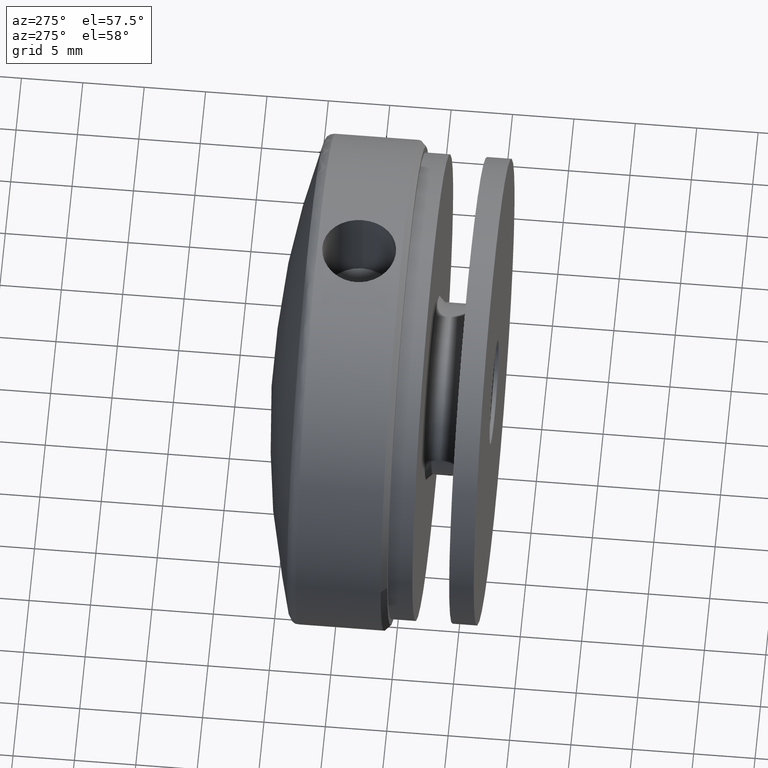
[diagram: clean part render]
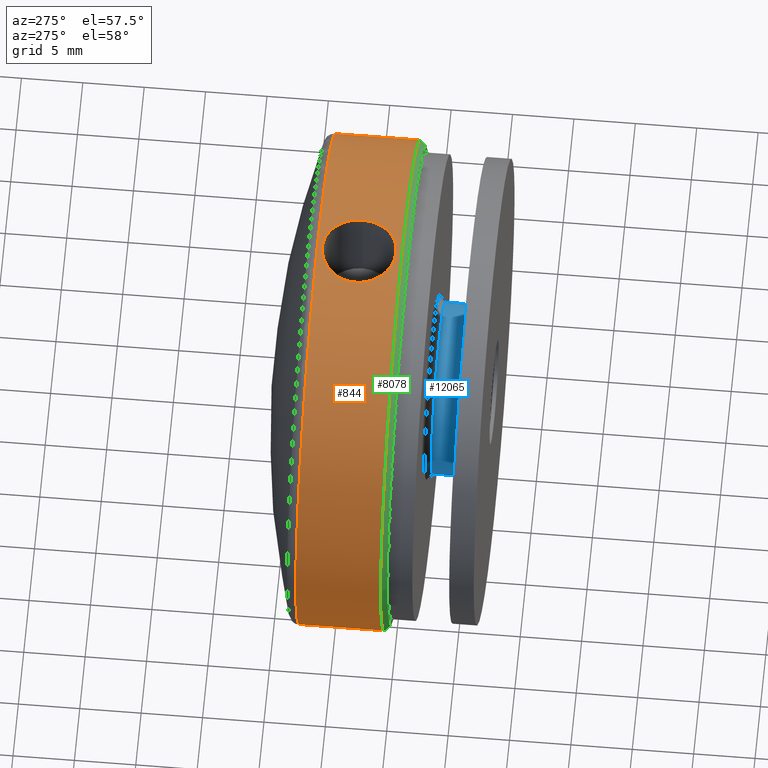
[diagram: same view with three faces highlighted in distinct colors, each labeled with its STEP entity id]
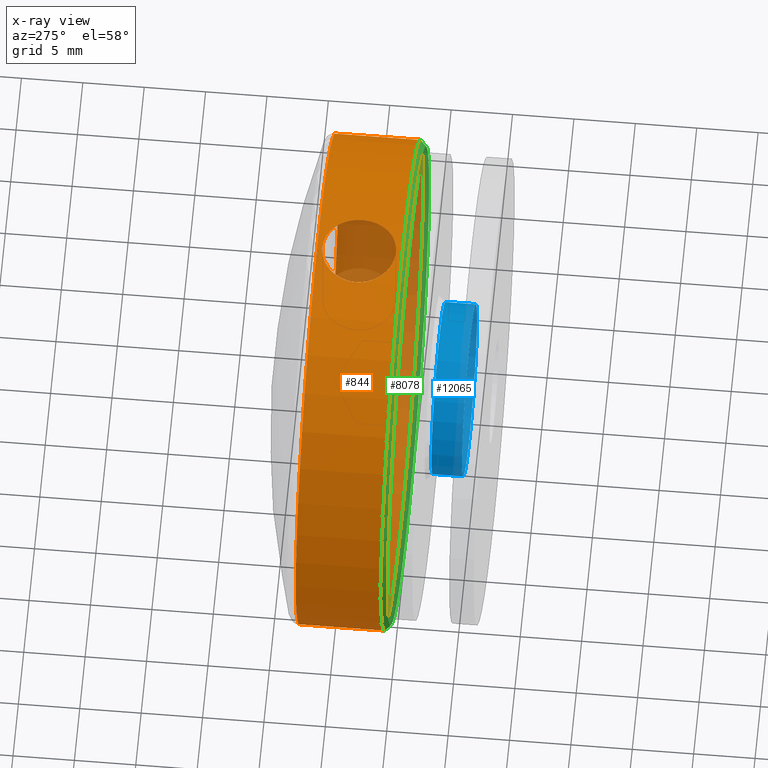
[diagram: x-ray of the same camera — body ghosted, the three highlighted faces saturated]
A machine part, auxiliary view with three faces highlighted in distinct colors.
The next image is the same camera in x-ray (body ghosted, the three faces saturated) — at least one of them is partly hidden behind the body in this view.
Their STEP definitions:

[orange] entity #844 — the highlighted cylindrical surface (bore or boss wall) has radius 20 mm, axis along (0, -1, 0).
#61 = CARTESIAN_POINT ( 'NONE',  ( 0.3924843016013099817, 1.014235132259550642, 19.99708734834322144 ) ) ;
#118 = CARTESIAN_POINT ( 'NONE',  ( 1.982912023966429516, 1.735301850126051093, 19.90194385507969699 ) ) ;
#167 = CARTESIAN_POINT ( 'NONE',  ( -0.7799630153351120310, 6.898430663692165510, 19.98570666959620468 ) ) ;
#211 = CARTESIAN_POINT ( 'NONE',  ( -0.9654443059216524237, 1.147787280579952940, 19.97751409969940184 ) ) ;
#428 = ORIENTED_EDGE ( 'NONE', *, *, #5107, .T. ) ;
#786 = VERTEX_POINT ( 'NONE', #9038 ) ;
#844 = ADVANCED_FACE ( 'NONE', ( #11697, #5355, #10942 ), #10561, .T. ) ;
#1266 = CARTESIAN_POINT ( 'NONE',  ( -2.695737535104842042, 2.663983177191850515, 19.81763806455638388 ) ) ;
#1306 = CARTESIAN_POINT ( 'NONE',  ( -2.904244946109209025, 4.772452195124953001, 19.78804872610956878 ) ) ;
#1346 = CARTESIAN_POINT ( 'NONE',  ( 2.694944518628679564, 5.327454306437994447, 19.81774487506234195 ) ) ;
#1361 = CARTESIAN_POINT ( 'NONE',  ( -2.385346488580511792, 5.824998558950380101, 19.85754949948117343 ) ) ;
#1764 = EDGE_LOOP ( 'NONE', ( #3885 ) ) ;
#1806 = CARTESIAN_POINT ( 'NONE',  ( -4.731064025391258908E-16, 0.4999999999999970024, 0.000000000000000000 ) ) ;
#2163 = DIRECTION ( 'NONE',  ( 9.462128050782586841E-16, -1.000000000000000000, -0.000000000000000000 ) ) ;
#2369 = CARTESIAN_POINT ( 'NONE',  ( 2.602028829569765556, 5.501130428467649658, 19.83032320855960151 ) ) ;
#2432 = CARTESIAN_POINT ( 'NONE',  ( 2.980494632510934050, 3.601384464667871210, 19.77670706137169176 ) ) ;
#2472 = CARTESIAN_POINT ( 'NONE',  ( 2.902947195030745497, 4.777284174358786828, 19.78823979352067397 ) ) ;
#2489 = CARTESIAN_POINT ( 'NONE',  ( -2.999924367750780529, 3.797927883773791979, 19.77373140794605888 ) ) ;
#2547 = CARTESIAN_POINT ( 'NONE',  ( -1.333671717301641468, 6.689445687771605975, 19.95631324620890013 ) ) ;
#2585 = CARTESIAN_POINT ( 'NONE',  ( 0.7748024653411119678, 6.899821084409989425, 19.98590931602771548 ) ) ;
#2599 = CARTESIAN_POINT ( 'NONE',  ( -0.1942566587511935505, 0.9948895982359836632, 20.00001656026199726 ) ) ;
#2954 = AXIS2_PLACEMENT_3D ( 'NONE', #11301, #3109, #11461 ) ;
#3037 = DIRECTION ( 'NONE',  ( -9.462128050782584868E-16, 1.000000000000000000, 0.000000000000000000 ) ) ;
#3109 = DIRECTION ( 'NONE',  ( 9.462128050782584868E-16, -1.000000000000000000, -0.000000000000000000 ) ) ;
#3441 = CARTESIAN_POINT ( 'NONE',  ( 2.904122174186587024, 3.217596731754320150, 19.78806622293177142 ) ) ;
#3538 = CARTESIAN_POINT ( 'NONE',  ( 1.827406881401280048, 6.382266513394358576, 19.91701262681981888 ) ) ;
#3596 = CIRCLE ( 'NONE', #14019, 19.99999999999999289 ) ;
#3702 = CARTESIAN_POINT ( 'NONE',  ( 0.3908299546655042422, 6.975865032044837655, 19.99710334011700041 ) ) ;
#3716 = CARTESIAN_POINT ( 'NONE',  ( -2.604078776341593571, 5.497513335365488807, 19.83005102670025366 ) ) ;
#3752 = CARTESIAN_POINT ( 'NONE',  ( 0.9657274049644209990, 6.842097939216756686, 19.97749811756153449 ) ) ;
#3766 = CARTESIAN_POINT ( 'NONE',  ( -2.980208671656110031, 3.598908363933514654, 19.77675080022011755 ) ) ;
#3819 = CARTESIAN_POINT ( 'NONE',  ( -1.504275438480748406, 1.392061028481429652, 19.94401427874444366 ) ) ;
#3885 = ORIENTED_EDGE ( 'NONE', *, *, #12860, .T. ) ;
#4028 = AXIS2_PLACEMENT_3D ( 'NONE', #1806, #3037, #8835 ) ;
#4345 = CARTESIAN_POINT ( 'NONE',  ( 19.99999999999998579, 7.405988364528855783, 0.000000000000000000 ) ) ;
#4401 = VERTEX_POINT ( 'NONE', #4345 ) ;
#4431 = CIRCLE ( 'NONE', #4028, 19.99999999999999289 ) ;
#4601 = DIRECTION ( 'NONE',  ( 1.000000000000000000, 9.540979117872442964E-16, 0.000000000000000000 ) ) ;
#4893 = CARTESIAN_POINT ( 'NONE',  ( 2.844982231046246035, 4.966718345130437307, 19.79676271506473029 ) ) ;
#4908 = CARTESIAN_POINT ( 'NONE',  ( -1.980792087563049586, 1.733243495970534287, 19.90216665992418044 ) ) ;
#4968 = CARTESIAN_POINT ( 'NONE',  ( -0.9703054951543786943, 6.840562345118187615, 19.97727773938221674 ) ) ;
#5023 = CARTESIAN_POINT ( 'NONE',  ( -2.903185432767895868, 3.213945165983599139, 19.78820432185765199 ) ) ;
#5107 = EDGE_CURVE ( 'NONE', #4401, #4401, #3596, .T. ) ;
#5355 = FACE_OUTER_BOUND ( 'NONE', #8004, .T. ) ;
#5861 = CARTESIAN_POINT ( 'NONE',  ( 2.695634571067647922, 2.663759504817300616, 19.81765225613441217 ) ) ;
#6132 = CARTESIAN_POINT ( 'NONE',  ( -2.384381064545721518, 2.163917290254678161, 19.85766134232187596 ) ) ;
#6183 = CARTESIAN_POINT ( 'NONE',  ( -1.831084454568188358, 6.379415806760994734, 19.91667079449273814 ) ) ;
#6228 = CARTESIAN_POINT ( 'NONE',  ( 0.9692005117596771413, 1.149159496943954473, 19.97731995618197587 ) ) ;
#6583 = B_SPLINE_CURVE_WITH_KNOTS ( 'NONE', 3,
 ( #7204, #9604, #2432, #3441, #12994, #5861, #14190, #14559, #12056, #118, #10856, #8454, #10959, #6228, #13258, #61, #12111, #2599, #7427, #8510, #211, #8613, #3819, #14509, #4908, #13302, #6132, #10902, #1266, #12154, #5023, #3766, #2489, #9667, #13356, #1306, #9765, #9718, #3716, #1361, #14444, #7366, #6183, #7316, #2547, #4968, #167, #8568, #14274, #9751, #3702, #2585, #3752, #14383, #9544, #3538, #14334, #15544, #12038, #2369, #1346, #4893, #2472, #11941, #8395, #8442 ),
 .UNSPECIFIED., .T., .F.,
 ( 4, 2, 2, 2, 2, 2, 2, 2, 2, 2, 2, 2, 2, 2, 2, 2, 2, 2, 2, 2, 2, 2, 2, 2, 2, 2, 2, 2, 2, 2, 2, 2, 4 ),
 ( 0.000000000000000000, 0.0005869663246212966038, 0.001173932649242593208, 0.001760898973863890028, 0.002347865298485186415, 0.002934831623106483236, 0.003521797947727780057, 0.004108764272349076443, 0.004695730596970372830, 0.005282696921591670085, 0.005869663246212966472, 0.006456629570834262859, 0.007043595895455560113, 0.007630562220076856500, 0.008217528544698152887, 0.008804494869319449274, 0.009391461193940745661, 0.009978427518562043783, 0.01056539384318334364, 0.01115236016780464176, 0.01173932649242594162, 0.01232629281704723974, 0.01291325914166853786, 0.01350022546628983598, 0.01408719179091113584, 0.01467415811553243396, 0.01526112444015373382, 0.01584809076477503020, 0.01643505708939633006, 0.01702202341401762992, 0.01760898973863892977, 0.01819595606326022616, 0.01878292238788152602 ),
 .UNSPECIFIED. ) ;
#6902 = EDGE_LOOP ( 'NONE', ( #15198 ) ) ;
#7204 = CARTESIAN_POINT ( 'NONE',  ( 2.999999999999989342, 3.994999999999995222, 19.77371993328518585 ) ) ;
#7316 = CARTESIAN_POINT ( 'NONE',  ( -1.505751477479395861, 6.597118657433123978, 19.94390529219465691 ) ) ;
#7366 = CARTESIAN_POINT ( 'NONE',  ( -1.985183788243346292, 6.252716254382629124, 19.90171714750904997 ) ) ;
#7427 = CARTESIAN_POINT ( 'NONE',  ( -0.3933378054690889192, 1.014428953963816715, 19.99705895379198850 ) ) ;
#8004 = EDGE_LOOP ( 'NONE', ( #428 ) ) ;
#8127 = VERTEX_POINT ( 'NONE', #11539 ) ;
#8250 = CARTESIAN_POINT ( 'NONE',  ( -7.007641024777777317E-15, 7.405988364528836243, 0.000000000000000000 ) ) ;
#8395 = CARTESIAN_POINT ( 'NONE',  ( 2.999999999999989342, 4.193494672168484705, 19.77371993328518585 ) ) ;
#8442 = CARTESIAN_POINT ( 'NONE',  ( 2.999999999999989342, 3.994999999999995222, 19.77371993328518585 ) ) ;
#8454 = CARTESIAN_POINT ( 'NONE',  ( 1.504243725710038726, 1.391897211145205260, 19.94402935115139996 ) ) ;
#8510 = CARTESIAN_POINT ( 'NONE',  ( -0.7783033420959312165, 1.091078117895943445, 19.98577807688071317 ) ) ;
#8568 = CARTESIAN_POINT ( 'NONE',  ( -0.3963926871789852924, 6.975121601832648288, 19.99699192943737813 ) ) ;
#8613 = CARTESIAN_POINT ( 'NONE',  ( -1.329000246935091223, 1.298249859347309521, 19.95662573320377930 ) ) ;
#8835 = DIRECTION ( 'NONE',  ( -1.000000000000000000, -9.486769009248167742E-16, 0.000000000000000000 ) ) ;
#9038 = CARTESIAN_POINT ( 'NONE',  ( 2.999999999999988454, 3.994999999999995222, 19.77371993328518229 ) ) ;
#9544 = CARTESIAN_POINT ( 'NONE',  ( 1.501080283454475417, 6.599844582463806120, 19.94426147716975706 ) ) ;
#9604 = CARTESIAN_POINT ( 'NONE',  ( 2.999999999999989342, 3.796505327831507071, 19.77371993328518585 ) ) ;
#9667 = CARTESIAN_POINT ( 'NONE',  ( -3.000075187788554310, 4.189762673103095914, 19.77370852605633189 ) ) ;
#9718 = CARTESIAN_POINT ( 'NONE',  ( -2.697296528857992648, 5.322699078997126243, 19.81742377391597643 ) ) ;
#9751 = CARTESIAN_POINT ( 'NONE',  ( 0.1957541252189633763, 6.995166735568333571, 20.00002501032646407 ) ) ;
#9765 = CARTESIAN_POINT ( 'NONE',  ( -2.846751857708069267, 4.961538809150906282, 19.79650720354968740 ) ) ;
#9980 = EDGE_CURVE ( 'NONE', #786, #786, #6583, .T. ) ;
#10561 = CYLINDRICAL_SURFACE ( 'NONE', #2954, 19.99999999999999289 ) ;
#10856 = CARTESIAN_POINT ( 'NONE',  ( 1.832071248250928708, 1.611219754882193600, 19.91659034290908181 ) ) ;
#10902 = CARTESIAN_POINT ( 'NONE',  ( -2.601643994846839281, 2.488485653911705953, 19.83036650118665989 ) ) ;
#10942 = FACE_OUTER_BOUND ( 'NONE', #1764, .T. ) ;
#10959 = CARTESIAN_POINT ( 'NONE',  ( 1.330056958386002908, 1.298871982216259324, 19.95654305612850266 ) ) ;
#11301 = CARTESIAN_POINT ( 'NONE',  ( 0.000000000000000000, 0.000000000000000000, 0.000000000000000000 ) ) ;
#11461 = DIRECTION ( 'NONE',  ( 1.000000000000000000, 9.462128050782584868E-16, 0.000000000000000000 ) ) ;
#11539 = CARTESIAN_POINT ( 'NONE',  ( -19.99999999999999289, 0.4999999999999780176, 0.000000000000000000 ) ) ;
#11697 = FACE_BOUND ( 'NONE', #6902, .T. ) ;
#11941 = CARTESIAN_POINT ( 'NONE',  ( 2.980492046609051204, 4.389636676817130656, 19.77670861652949696 ) ) ;
#12038 = CARTESIAN_POINT ( 'NONE',  ( 2.382192207591607769, 5.829160075772608529, 19.85793123343767874 ) ) ;
#12056 = CARTESIAN_POINT ( 'NONE',  ( 2.259260527010547470, 2.011589378261171568, 19.87246967985173640 ) ) ;
#12111 = CARTESIAN_POINT ( 'NONE',  ( 0.1976517996777145958, 0.9951113623459315605, 19.99998329565071842 ) ) ;
#12154 = CARTESIAN_POINT ( 'NONE',  ( -2.846314737807528861, 3.026961233156911124, 19.79657222170713382 ) ) ;
#12860 = EDGE_CURVE ( 'NONE', #8127, #8127, #4431, .T. ) ;
#12994 = CARTESIAN_POINT ( 'NONE',  ( 2.846307810905472913, 3.026920022762669138, 19.79657340378337338 ) ) ;
#13258 = CARTESIAN_POINT ( 'NONE',  ( 0.7798554023450402495, 1.091411069866731642, 19.98572920600360447 ) ) ;
#13302 = CARTESIAN_POINT ( 'NONE',  ( -2.260454243774322247, 2.012721919236700074, 19.87234565081216076 ) ) ;
#13356 = CARTESIAN_POINT ( 'NONE',  ( -2.981144381110900188, 4.384677817788497300, 19.77660965061652476 ) ) ;
#14019 = AXIS2_PLACEMENT_3D ( 'NONE', #8250, #2163, #4601 ) ;
#14190 = CARTESIAN_POINT ( 'NONE',  ( 2.603472936415865302, 2.491561515110398695, 19.83012766737486743 ) ) ;
#14274 = CARTESIAN_POINT ( 'NONE',  ( -0.2008317574897392488, 6.994831115902124807, 19.99997466739416296 ) ) ;
#14334 = CARTESIAN_POINT ( 'NONE',  ( 1.981482987437620080, 6.255945435349329564, 19.90208647069352921 ) ) ;
#14383 = CARTESIAN_POINT ( 'NONE',  ( 1.328779319930802449, 6.691839189702614377, 19.95663814315420836 ) ) ;
#14444 = CARTESIAN_POINT ( 'NONE',  ( -2.261463040302940986, 5.975914504907147595, 19.87221892517048261 ) ) ;
#14509 = CARTESIAN_POINT ( 'NONE',  ( -1.829026254143618635, 1.609041315127195171, 19.91685751084322575 ) ) ;
#14559 = CARTESIAN_POINT ( 'NONE',  ( 2.385781400097930938, 2.165670691361517797, 19.85749434712201378 ) ) ;
#15198 = ORIENTED_EDGE ( 'NONE', *, *, #9980, .T. ) ;
#15544 = CARTESIAN_POINT ( 'NONE',  ( 2.257915189029446879, 5.979935286169747677, 19.87262286955642310 ) ) ;

[blue] entity #12065 — the highlighted cylindrical surface (bore or boss wall) has radius 7 mm, axis along (0, 1, 0).
#157 = CARTESIAN_POINT ( 'NONE',  ( -0.000000000000000000, 2.500000000000004885, 0.000000000000000000 ) ) ;
#253 = EDGE_LOOP ( 'NONE', ( #4036 ) ) ;
#416 = VERTEX_POINT ( 'NONE', #10377 ) ;
#632 = CYLINDRICAL_SURFACE ( 'NONE', #2503, 6.999999999999999112 ) ;
#720 = CIRCLE ( 'NONE', #4225, 6.999999999999999112 ) ;
#2408 = EDGE_CURVE ( 'NONE', #6452, #6452, #13527, .T. ) ;
#2503 = AXIS2_PLACEMENT_3D ( 'NONE', #8362, #12003, #6073 ) ;
#3807 = DIRECTION ( 'NONE',  ( -0.000000000000000000, 1.000000000000000000, 0.000000000000000000 ) ) ;
#4036 = ORIENTED_EDGE ( 'NONE', *, *, #8001, .T. ) ;
#4225 = AXIS2_PLACEMENT_3D ( 'NONE', #8964, #13845, #12493 ) ;
#4785 = EDGE_LOOP ( 'NONE', ( #11315 ) ) ;
#6073 = DIRECTION ( 'NONE',  ( 0.000000000000000000, 0.000000000000000000, -1.000000000000000000 ) ) ;
#6452 = VERTEX_POINT ( 'NONE', #10324 ) ;
#6671 = FACE_OUTER_BOUND ( 'NONE', #4785, .T. ) ;
#8001 = EDGE_CURVE ( 'NONE', #416, #416, #720, .T. ) ;
#8362 = CARTESIAN_POINT ( 'NONE',  ( 0.000000000000000000, 0.000000000000000000, 0.000000000000000000 ) ) ;
#8964 = CARTESIAN_POINT ( 'NONE',  ( -0.000000000000000000, 5.000000000000000000, 0.000000000000000000 ) ) ;
#10324 = CARTESIAN_POINT ( 'NONE',  ( 0.000000000000000000, 2.500000000000004885, 6.999999999999999112 ) ) ;
#10377 = CARTESIAN_POINT ( 'NONE',  ( 0.000000000000000000, 5.000000000000000000, -6.999999999999999112 ) ) ;
#10952 = FACE_OUTER_BOUND ( 'NONE', #253, .T. ) ;
#11097 = DIRECTION ( 'NONE',  ( 0.000000000000000000, 0.000000000000000000, 1.000000000000000000 ) ) ;
#11315 = ORIENTED_EDGE ( 'NONE', *, *, #2408, .T. ) ;
#12003 = DIRECTION ( 'NONE',  ( 0.000000000000000000, -1.000000000000000000, 0.000000000000000000 ) ) ;
#12065 = ADVANCED_FACE ( 'NONE', ( #6671, #10952 ), #632, .T. ) ;
#12493 = DIRECTION ( 'NONE',  ( 0.000000000000000000, 0.000000000000000000, -1.000000000000000000 ) ) ;
#12695 = AXIS2_PLACEMENT_3D ( 'NONE', #157, #3807, #11097 ) ;
#13527 = CIRCLE ( 'NONE', #12695, 6.999999999999999112 ) ;
#13845 = DIRECTION ( 'NONE',  ( 0.000000000000000000, -1.000000000000000000, 0.000000000000000000 ) ) ;

[green] entity #8078 — the highlighted conical surface has half-angle 45 deg.
#232 = VERTEX_POINT ( 'NONE', #1841 ) ;
#1806 = CARTESIAN_POINT ( 'NONE',  ( -4.731064025391258908E-16, 0.4999999999999970024, 0.000000000000000000 ) ) ;
#1841 = CARTESIAN_POINT ( 'NONE',  ( -19.50000000000000711, -8.042808843165203844E-15, 0.000000000000000000 ) ) ;
#2330 = CIRCLE ( 'NONE', #2407, 19.50000000000000711 ) ;
#2407 = AXIS2_PLACEMENT_3D ( 'NONE', #13201, #4900, #14436 ) ;
#3008 = FACE_OUTER_BOUND ( 'NONE', #15150, .T. ) ;
#3037 = DIRECTION ( 'NONE',  ( -9.462128050782584868E-16, 1.000000000000000000, 0.000000000000000000 ) ) ;
#4028 = AXIS2_PLACEMENT_3D ( 'NONE', #1806, #3037, #8835 ) ;
#4431 = CIRCLE ( 'NONE', #4028, 19.99999999999999289 ) ;
#4900 = DIRECTION ( 'NONE',  ( 9.462128050782584868E-16, -1.000000000000000000, -0.000000000000000000 ) ) ;
#6138 = AXIS2_PLACEMENT_3D ( 'NONE', #12907, #9369, #10552 ) ;
#8048 = FACE_BOUND ( 'NONE', #13957, .T. ) ;
#8078 = ADVANCED_FACE ( 'NONE', ( #3008, #8048 ), #14187, .T. ) ;
#8127 = VERTEX_POINT ( 'NONE', #11539 ) ;
#8835 = DIRECTION ( 'NONE',  ( -1.000000000000000000, -9.486769009248167742E-16, 0.000000000000000000 ) ) ;
#9369 = DIRECTION ( 'NONE',  ( -9.462128050782584868E-16, 1.000000000000000000, 0.000000000000000000 ) ) ;
#9925 = ORIENTED_EDGE ( 'NONE', *, *, #13309, .F. ) ;
#10552 = DIRECTION ( 'NONE',  ( -1.000000000000000000, -9.462128050782582896E-16, 0.000000000000000000 ) ) ;
#10773 = ORIENTED_EDGE ( 'NONE', *, *, #12860, .F. ) ;
#11539 = CARTESIAN_POINT ( 'NONE',  ( -19.99999999999999289, 0.4999999999999780176, 0.000000000000000000 ) ) ;
#12860 = EDGE_CURVE ( 'NONE', #8127, #8127, #4431, .T. ) ;
#12907 = CARTESIAN_POINT ( 'NONE',  ( -8.953186724940663883E-30, 1.040834085586084257E-14, 0.000000000000000000 ) ) ;
#13201 = CARTESIAN_POINT ( 'NONE',  ( -8.953186724940666686E-30, 1.040834085586084257E-14, 0.000000000000000000 ) ) ;
#13309 = EDGE_CURVE ( 'NONE', #232, #232, #2330, .T. ) ;
#13957 = EDGE_LOOP ( 'NONE', ( #9925 ) ) ;
#14187 = CONICAL_SURFACE ( 'NONE', #6138, 19.50000000000000711, 0.7853981633974479459 ) ;
#14436 = DIRECTION ( 'NONE',  ( -1.000000000000000000, -9.462128050782582896E-16, 0.000000000000000000 ) ) ;
#15150 = EDGE_LOOP ( 'NONE', ( #10773 ) ) ;